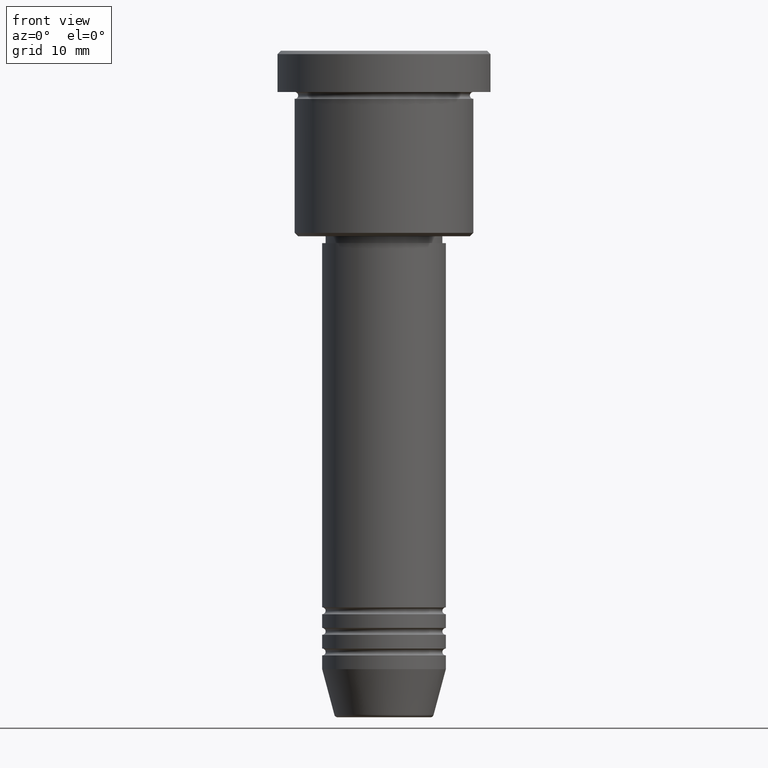
[diagram: clean part render]
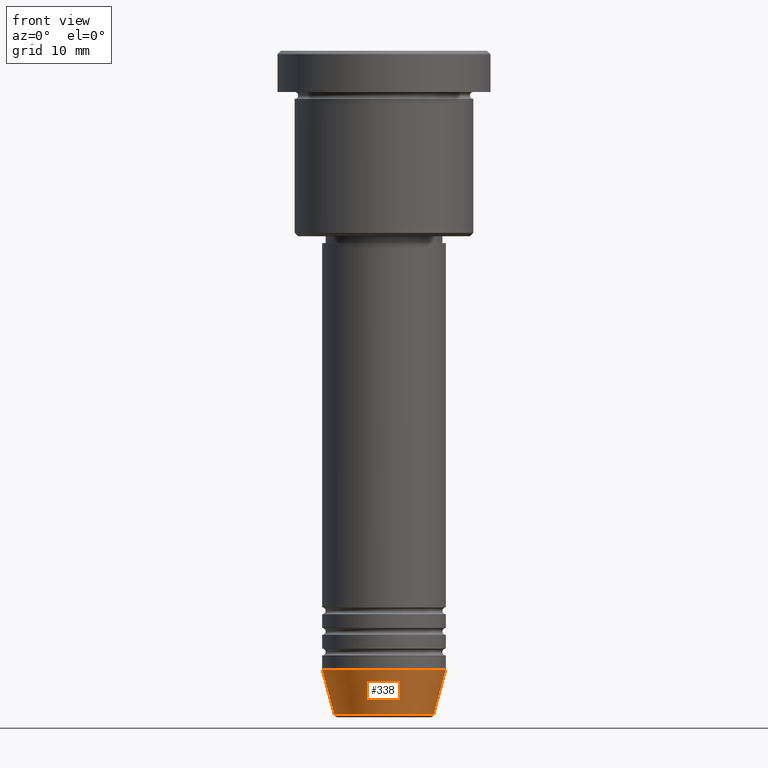
[diagram: same view with one face highlighted and labeled with its STEP entity id]
A machine part, front view. The second image highlights one B-rep face of the part: STEP entity #338.
In plain terms, the highlighted conical surface has half-angle 15 deg.
Its self-contained STEP definition (entity closure, byte-faithful):
#86 = EDGE_CURVE ( 'NONE', #503, #860, #182, .T. ) ;
#95 = DIRECTION ( 'NONE',  ( 1.000000000000000000, 0.000000000000000000, 0.000000000000000000 ) ) ;
#153 = LINE ( 'NONE', #869, #969 ) ;
#172 = DIRECTION ( 'NONE',  ( -0.000000000000000000, -0.000000000000000000, 1.000000000000000000 ) ) ;
#182 = LINE ( 'NONE', #344, #212 ) ;
#212 = VECTOR ( 'NONE', #269, 1000.000000000000000 ) ;
#242 = FACE_OUTER_BOUND ( 'NONE', #510, .T. ) ;
#254 = DIRECTION ( 'NONE',  ( -0.000000000000000000, -0.000000000000000000, 1.000000000000000000 ) ) ;
#269 = DIRECTION ( 'NONE',  ( 0.2588190451025213501, 0.000000000000000000, 0.9659258262890680902 ) ) ;
#330 = AXIS2_PLACEMENT_3D ( 'NONE', #702, #254, #617 ) ;
#338 = ADVANCED_FACE ( 'NONE', ( #242 ), #882, .T. ) ;
#344 = CARTESIAN_POINT ( 'NONE',  ( 9.000000000000000000, 0.000000000000000000, -90.00000000000000000 ) ) ;
#367 = ORIENTED_EDGE ( 'NONE', *, *, #507, .T. ) ;
#384 = CARTESIAN_POINT ( 'NONE',  ( -9.000000000000000000, 1.102182119232617714E-15, -90.00000000000000000 ) ) ;
#422 = DIRECTION ( 'NONE',  ( -0.2588190451025213501, 3.169619151431772337E-17, 0.9659258262890680902 ) ) ;
#444 = DIRECTION ( 'NONE',  ( -0.000000000000000000, -0.000000000000000000, 1.000000000000000000 ) ) ;
#469 = CARTESIAN_POINT ( 'NONE',  ( 0.000000000000000000, 0.000000000000000000, -90.00000000000000000 ) ) ;
#503 = VERTEX_POINT ( 'NONE', #542 ) ;
#507 = EDGE_CURVE ( 'NONE', #1173, #503, #1045, .T. ) ;
#510 = EDGE_LOOP ( 'NONE', ( #884, #367, #672, #1167 ) ) ;
#542 = CARTESIAN_POINT ( 'NONE',  ( 7.223655072137188604, 0.000000000000000000, -96.62940952255127058 ) ) ;
#558 = EDGE_CURVE ( 'NONE', #725, #860, #1064, .T. ) ;
#617 = DIRECTION ( 'NONE',  ( 1.000000000000000000, 0.000000000000000000, 0.000000000000000000 ) ) ;
#672 = ORIENTED_EDGE ( 'NONE', *, *, #86, .T. ) ;
#695 = AXIS2_PLACEMENT_3D ( 'NONE', #469, #172, #95 ) ;
#699 = CARTESIAN_POINT ( 'NONE',  ( -7.223655072137189492, 9.934123627281765110E-16, -96.62940952255127058 ) ) ;
#702 = CARTESIAN_POINT ( 'NONE',  ( 0.000000000000000000, 0.000000000000000000, -96.62940952255127058 ) ) ;
#725 = VERTEX_POINT ( 'NONE', #384 ) ;
#788 = CARTESIAN_POINT ( 'NONE',  ( 0.000000000000000000, 0.000000000000000000, -90.00000000000000000 ) ) ;
#831 = CARTESIAN_POINT ( 'NONE',  ( 9.000000000000000000, 0.000000000000000000, -90.00000000000000000 ) ) ;
#860 = VERTEX_POINT ( 'NONE', #831 ) ;
#869 = CARTESIAN_POINT ( 'NONE',  ( -9.000000000000000000, 1.102182119232617714E-15, -90.00000000000000000 ) ) ;
#882 = CONICAL_SURFACE ( 'NONE', #1157, 9.000000000000000000, 0.2617993877991500740 ) ;
#884 = ORIENTED_EDGE ( 'NONE', *, *, #1118, .F. ) ;
#969 = VECTOR ( 'NONE', #422, 1000.000000000000000 ) ;
#996 = DIRECTION ( 'NONE',  ( 1.000000000000000000, 0.000000000000000000, 0.000000000000000000 ) ) ;
#1045 = CIRCLE ( 'NONE', #330, 7.223655072137188604 ) ;
#1064 = CIRCLE ( 'NONE', #695, 9.000000000000000000 ) ;
#1118 = EDGE_CURVE ( 'NONE', #1173, #725, #153, .T. ) ;
#1157 = AXIS2_PLACEMENT_3D ( 'NONE', #788, #444, #996 ) ;
#1167 = ORIENTED_EDGE ( 'NONE', *, *, #558, .F. ) ;
#1173 = VERTEX_POINT ( 'NONE', #699 ) ;